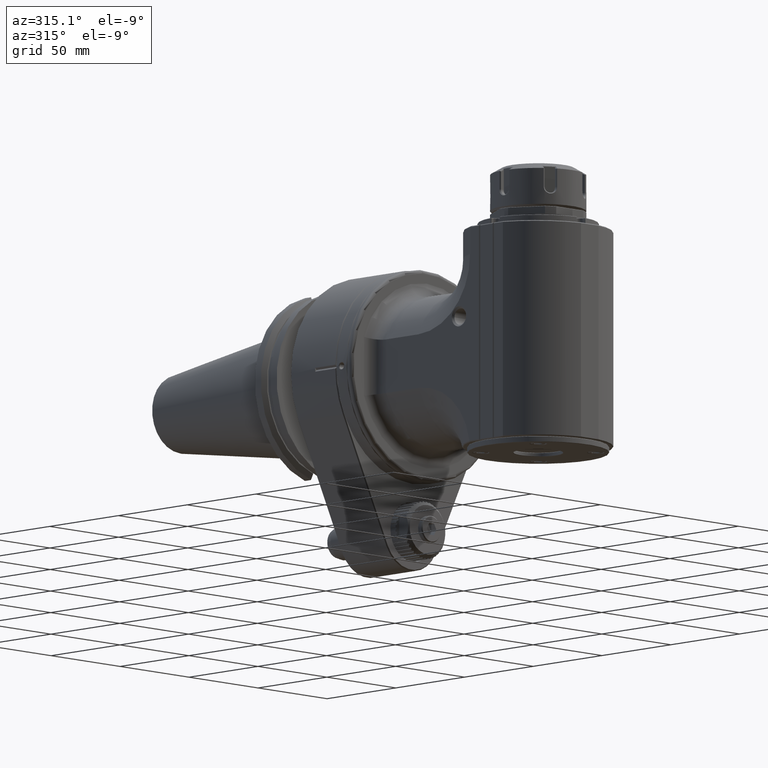
[diagram: clean part render]
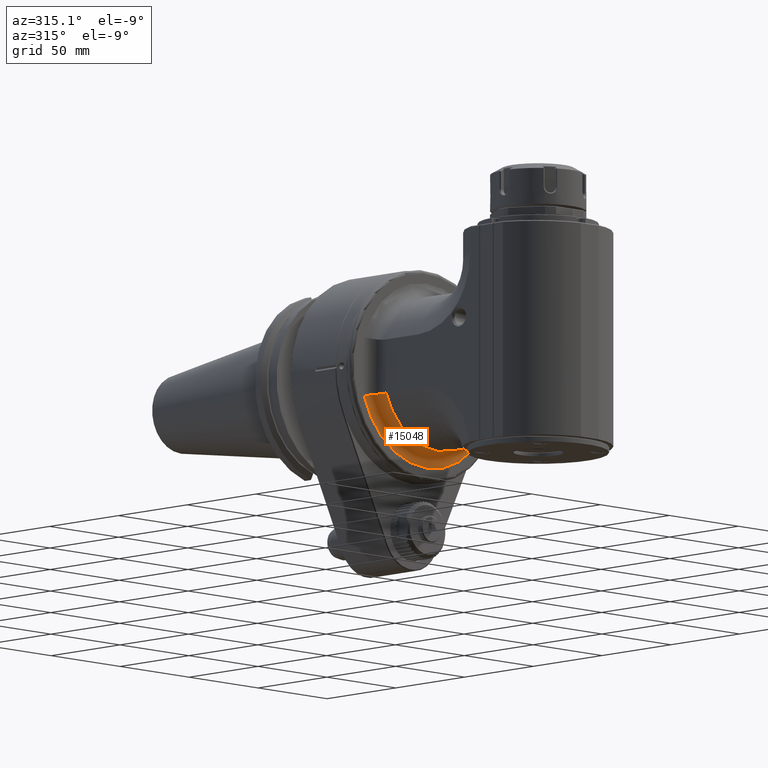
[diagram: same view with one face highlighted and labeled with its STEP entity id]
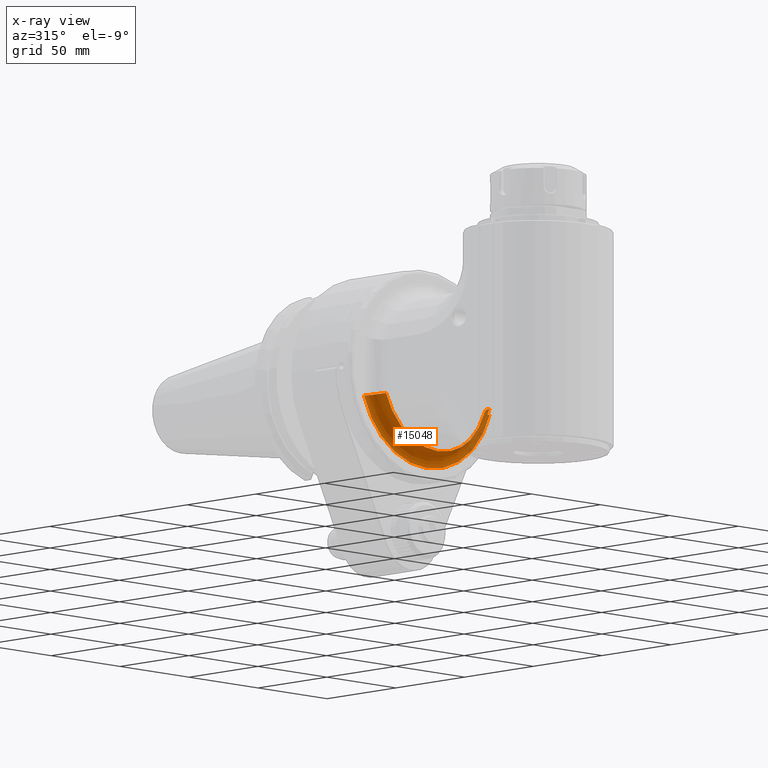
[diagram: x-ray of the same camera — body ghosted, the highlighted face saturated]
A machine part, auxiliary view. The second image highlights one B-rep face of the part: STEP entity #15048.
The next image is the same camera in x-ray: the body ghosted, the highlighted face saturated — about 12% of this face is hidden behind the body in this view.
In plain terms, the highlighted toroidal blend (fillet) surface has major radius 48 mm and minor (blend) radius 8 mm.
Its self-contained STEP definition (entity closure, byte-faithful):
#328=TOROIDAL_SURFACE('',#16053,48.,8.);
#346=B_SPLINE_CURVE_WITH_KNOTS('',3,(#22113,#22114,#22115,#22116,#22117,
#22118,#22119,#22120,#22121,#22122,#22123,#22124,#22125,#22126),
 .UNSPECIFIED.,.F.,.F.,(4,2,2,2,2,2,4),(1.26781653333933,1.27240305406591,
1.58212819075038,1.89661722669918,2.21567519348388,2.53634682444,2.53775043916278),
 .UNSPECIFIED.);
#348=B_SPLINE_CURVE_WITH_KNOTS('',3,(#22147,#22148,#22149,#22150,#22151,
#22152,#22153,#22154,#22155,#22156,#22157,#22158,#22159,#22160),
 .UNSPECIFIED.,.F.,.F.,(4,2,2,2,2,2,4),(-0.00140371422169259,1.09523935060141E-14,
0.320694362612916,0.639774946665548,0.954286276001547,1.26403336837161,
1.26862021422584),.UNSPECIFIED.);
#1271=FACE_OUTER_BOUND('',#2163,.T.);
#2163=EDGE_LOOP('',(#10485,#10486,#10487,#10488));
#3053=CIRCLE('',#15926,40.);
#3065=CIRCLE('',#15955,48.);
#6326=VERTEX_POINT('',#21771);
#6329=VERTEX_POINT('',#21776);
#6379=VERTEX_POINT('',#22111);
#6381=VERTEX_POINT('',#22146);
#7843=EDGE_CURVE('',#6329,#6326,#3053,.T.);
#7909=EDGE_CURVE('',#6329,#6379,#346,.T.);
#7913=EDGE_CURVE('',#6381,#6326,#348,.T.);
#7916=EDGE_CURVE('',#6381,#6379,#3065,.T.);
#10485=ORIENTED_EDGE('',*,*,#7913,.T.);
#10486=ORIENTED_EDGE('',*,*,#7843,.F.);
#10487=ORIENTED_EDGE('',*,*,#7909,.T.);
#10488=ORIENTED_EDGE('',*,*,#7916,.F.);
#15048=ADVANCED_FACE('',(#1271),#328,.F.);
#15926=AXIS2_PLACEMENT_3D('',#21778,#17440,#17441);
#15955=AXIS2_PLACEMENT_3D('',#22165,#17546,#17547);
#16053=AXIS2_PLACEMENT_3D('',#22634,#17779,#17780);
#17440=DIRECTION('center_axis',(0.,-1.,0.));
#17441=DIRECTION('ref_axis',(-0.937499999999992,0.,-0.347985272676897));
#17546=DIRECTION('center_axis',(0.,1.,0.));
#17547=DIRECTION('ref_axis',(0.947916666666669,0.,-0.31851843440459));
#17779=DIRECTION('center_axis',(0.,-1.,0.));
#17780=DIRECTION('ref_axis',(0.999962024757271,0.,-0.00871487483203775));
#21771=CARTESIAN_POINT('',(37.5,73.,-13.91941090708));
#21776=CARTESIAN_POINT('',(-37.5,73.,-13.91941090708));
#21778=CARTESIAN_POINT('Origin',(0.,73.,0.));
#22111=CARTESIAN_POINT('',(-45.5,81.,-15.28888485142));
#22113=CARTESIAN_POINT('Ctrl Pts',(-37.5,73.,-13.9194109070751));
#22114=CARTESIAN_POINT('Ctrl Pts',(-37.5,73.0152760696111,-13.9194109070751));
#22115=CARTESIAN_POINT('Ctrl Pts',(-37.5000437546546,73.03055445275,-13.9194187656887));
#22116=CARTESIAN_POINT('Ctrl Pts',(-37.5060434499449,74.0777194625499,-13.9204963409478));
#22117=CARTESIAN_POINT('Ctrl Pts',(-37.7115006671327,75.0974702303897,-13.9575211104084));
#22118=CARTESIAN_POINT('Ctrl Pts',(-38.5024505638798,77.0158768558975,-14.0984856166691));
#22119=CARTESIAN_POINT('Ctrl Pts',(-39.0854335720309,77.8923894164123,-14.2018832560319));
#22120=CARTESIAN_POINT('Ctrl Pts',(-40.5605662090073,79.38089348642,-14.4592402579846));
#22121=CARTESIAN_POINT('Ctrl Pts',(-41.4427234400471,79.9744305380103,-14.6113147547117));
#22122=CARTESIAN_POINT('Ctrl Pts',(-43.3863536417775,80.7876742774233,-14.9401788032519));
#22123=CARTESIAN_POINT('Ctrl Pts',(-44.4311821203471,80.9981611828088,-15.1140887084514));
#22124=CARTESIAN_POINT('Ctrl Pts',(-45.4907645685782,80.9999960018731,-15.2873746409488));
#22125=CARTESIAN_POINT('Ctrl Pts',(-45.4953822795886,81.,-15.2881297733924));
#22126=CARTESIAN_POINT('Ctrl Pts',(-45.4999999999999,81.,-15.2888848514207));
#22146=CARTESIAN_POINT('',(45.5,81.,-15.28888485142));
#22147=CARTESIAN_POINT('Ctrl Pts',(45.4999999999999,81.,-15.2888848514207));
#22148=CARTESIAN_POINT('Ctrl Pts',(45.4953822795887,81.,-15.2881297733924));
#22149=CARTESIAN_POINT('Ctrl Pts',(45.4907645685781,80.9999960018731,-15.2873746409488));
#22150=CARTESIAN_POINT('Ctrl Pts',(44.4311821203471,80.9981611828088,-15.1140887084514));
#22151=CARTESIAN_POINT('Ctrl Pts',(43.3863536417774,80.7876742774233,-14.9401788032521));
#22152=CARTESIAN_POINT('Ctrl Pts',(41.442723440047,79.9744305380103,-14.6113147547118));
#22153=CARTESIAN_POINT('Ctrl Pts',(40.5605662090072,79.38089348642,-14.4592402579846));
#22154=CARTESIAN_POINT('Ctrl Pts',(39.0854335720309,77.8923894164124,-14.2018832560319));
#22155=CARTESIAN_POINT('Ctrl Pts',(38.5024505638798,77.0158768558975,-14.0984856166691));
#22156=CARTESIAN_POINT('Ctrl Pts',(37.7115006671327,75.0974702303897,-13.9575211104083));
#22157=CARTESIAN_POINT('Ctrl Pts',(37.5060434499449,74.07771946255,-13.9204963409478));
#22158=CARTESIAN_POINT('Ctrl Pts',(37.5000437546546,73.03055445275,-13.9194187656887));
#22159=CARTESIAN_POINT('Ctrl Pts',(37.5,73.0152760696111,-13.9194109070751));
#22160=CARTESIAN_POINT('Ctrl Pts',(37.5,73.,-13.9194109070751));
#22165=CARTESIAN_POINT('Origin',(0.,81.,0.));
#22634=CARTESIAN_POINT('Origin',(0.,73.,0.));